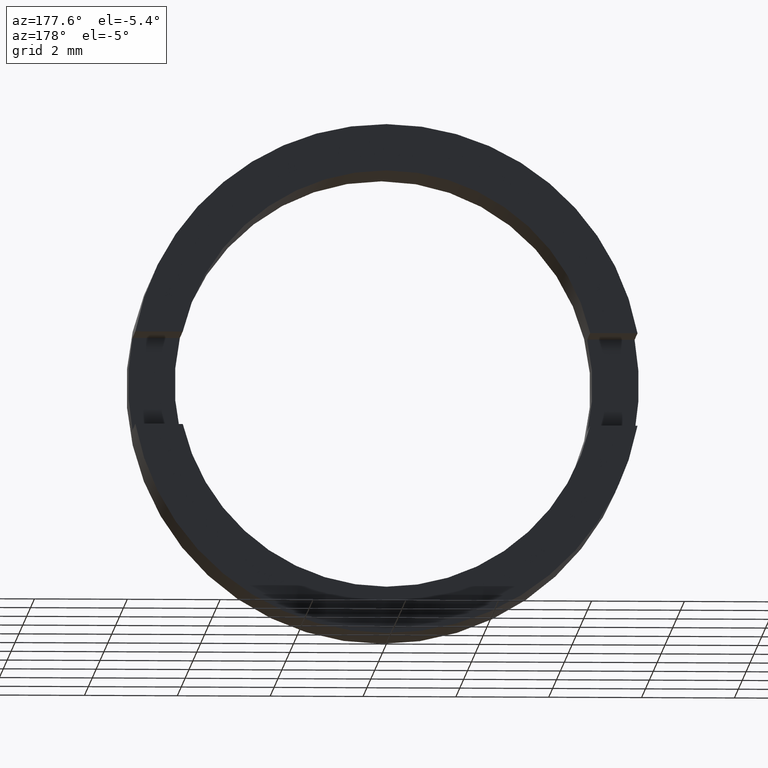
[diagram: clean part render]
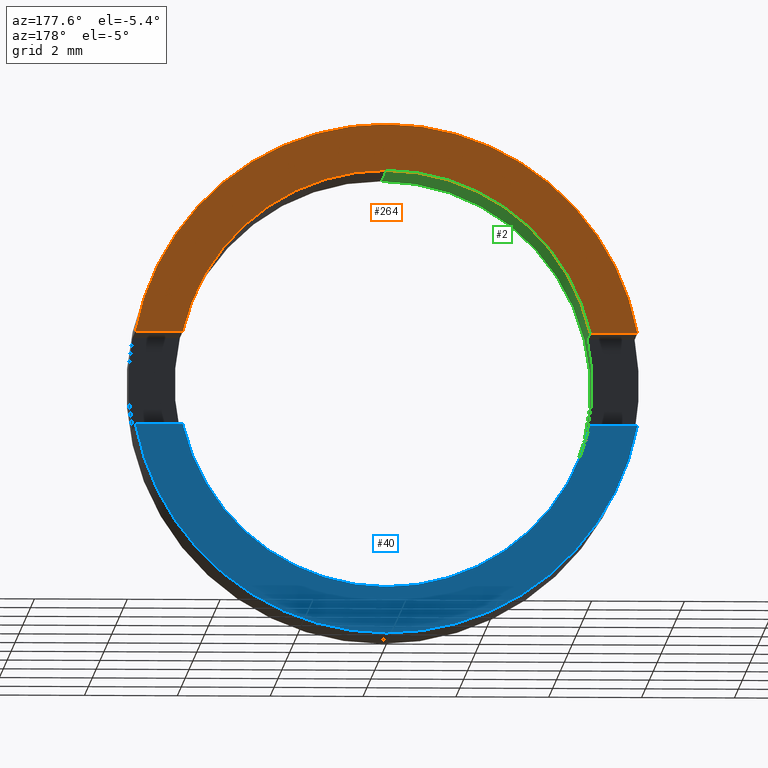
[diagram: same view with three faces highlighted in distinct colors, each labeled with its STEP entity id]
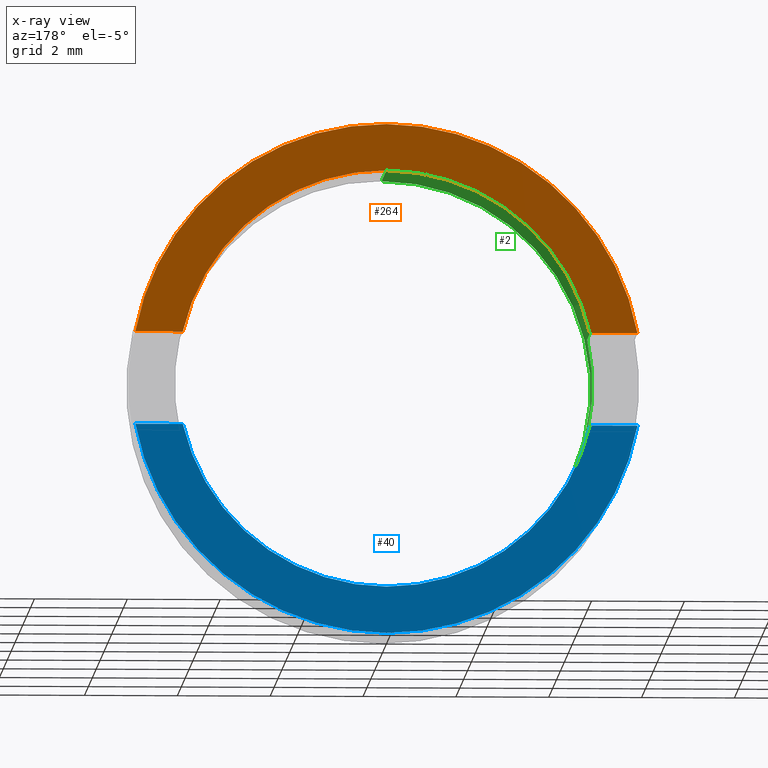
[diagram: x-ray of the same camera — body ghosted, the three highlighted faces saturated]
A machine part, auxiliary view with three faces highlighted in distinct colors.
The next image is the same camera in x-ray (body ghosted, the three faces saturated) — at least one of them is partly hidden behind the body in this view.
Their STEP definitions:

[orange] entity #264 — the highlighted planar face has unit normal (0, -1, 0).
#5 = DIRECTION ( 'NONE',  ( 0.0000000000000000000, 0.0000000000000000000, 1.000000000000000000 ) ) ;
#7 = CARTESIAN_POINT ( 'NONE',  ( 0.0000000000000000000, -1.964249787179434000, 0.0000000000000000000 ) ) ;
#9 = LINE ( 'NONE', #203, #224 ) ;
#28 = CARTESIAN_POINT ( 'NONE',  ( -26.85254027261461800, -1.964249787179430900, 1.000000000000000000 ) ) ;
#39 = EDGE_CURVE ( 'NONE', #310, #571, #260, .T. ) ;
#42 = AXIS2_PLACEMENT_3D ( 'NONE', #7, #491, #85 ) ;
#49 = VECTOR ( 'NONE', #481, 1000.000000000000000 ) ;
#66 = CARTESIAN_POINT ( 'NONE',  ( 0.0000000000000000000, -1.964249787179434000, 4.500000000000007100 ) ) ;
#69 = ORIENTED_EDGE ( 'NONE', *, *, #526, .T. ) ;
#71 = DIRECTION ( 'NONE',  ( 0.0000000000000000000, -0.0000000000000000000, -1.000000000000000000 ) ) ;
#72 = CIRCLE ( 'NONE', #381, 5.500000000000006200 ) ;
#85 = DIRECTION ( 'NONE',  ( 0.0000000000000000000, 0.0000000000000000000, 1.000000000000000000 ) ) ;
#143 = VERTEX_POINT ( 'NONE', #505 ) ;
#151 = FACE_OUTER_BOUND ( 'NONE', #295, .T. ) ;
#154 = DIRECTION ( 'NONE',  ( 1.000000000000000000, 0.0000000000000000000, 0.0000000000000000000 ) ) ;
#171 = CARTESIAN_POINT ( 'NONE',  ( -4.387482193696067500, -1.964249787179434000, 0.9999999999999995600 ) ) ;
#172 = LINE ( 'NONE', #28, #49 ) ;
#192 = AXIS2_PLACEMENT_3D ( 'NONE', #407, #547, #5 ) ;
#198 = DIRECTION ( 'NONE',  ( -0.0000000000000000000, 1.000000000000000000, -0.0000000000000000000 ) ) ;
#203 = CARTESIAN_POINT ( 'NONE',  ( -26.85254027261461800, -1.964249787179430900, 1.000000000000000000 ) ) ;
#208 = ORIENTED_EDGE ( 'NONE', *, *, #537, .F. ) ;
#220 = CARTESIAN_POINT ( 'NONE',  ( 4.387482193696067500, -1.964249787179434000, 0.9999999999999995600 ) ) ;
#224 = VECTOR ( 'NONE', #154, 1000.000000000000000 ) ;
#240 = CIRCLE ( 'NONE', #449, 5.500000000000006200 ) ;
#247 = DIRECTION ( 'NONE',  ( 0.0000000000000000000, -1.000000000000000000, 0.0000000000000000000 ) ) ;
#251 = DIRECTION ( 'NONE',  ( 0.0000000000000000000, 0.0000000000000000000, 1.000000000000000000 ) ) ;
#255 = VERTEX_POINT ( 'NONE', #518 ) ;
#256 = EDGE_CURVE ( 'NONE', #255, #143, #240, .T. ) ;
#260 = CIRCLE ( 'NONE', #192, 4.500000000000007100 ) ;
#264 = ADVANCED_FACE ( 'NONE', ( #151 ), #511, .F. ) ;
#289 = CARTESIAN_POINT ( 'NONE',  ( 4.500000000000007100, -1.964249787179430900, 0.0000000000000000000 ) ) ;
#295 = EDGE_LOOP ( 'NONE', ( #69, #360, #208, #564, #424, #472 ) ) ;
#310 = VERTEX_POINT ( 'NONE', #66 ) ;
#316 = AXIS2_PLACEMENT_3D ( 'NONE', #289, #247, #71 ) ;
#334 = CARTESIAN_POINT ( 'NONE',  ( -5.408326913195995900, -1.964249787179430900, 1.000000000000000000 ) ) ;
#347 = DIRECTION ( 'NONE',  ( -0.0000000000000000000, 1.000000000000000000, -0.0000000000000000000 ) ) ;
#356 = EDGE_CURVE ( 'NONE', #385, #515, #9, .T. ) ;
#360 = ORIENTED_EDGE ( 'NONE', *, *, #256, .T. ) ;
#372 = CARTESIAN_POINT ( 'NONE',  ( 0.0000000000000000000, -1.964249787179434000, 0.0000000000000000000 ) ) ;
#381 = AXIS2_PLACEMENT_3D ( 'NONE', #528, #347, #251 ) ;
#385 = VERTEX_POINT ( 'NONE', #334 ) ;
#407 = CARTESIAN_POINT ( 'NONE',  ( 0.0000000000000000000, -1.964249787179434000, 0.0000000000000000000 ) ) ;
#424 = ORIENTED_EDGE ( 'NONE', *, *, #559, .F. ) ;
#449 = AXIS2_PLACEMENT_3D ( 'NONE', #372, #198, #565 ) ;
#472 = ORIENTED_EDGE ( 'NONE', *, *, #356, .F. ) ;
#481 = DIRECTION ( 'NONE',  ( 1.000000000000000000, 0.0000000000000000000, 0.0000000000000000000 ) ) ;
#487 = CIRCLE ( 'NONE', #42, 4.500000000000007100 ) ;
#491 = DIRECTION ( 'NONE',  ( -0.0000000000000000000, 1.000000000000000000, -0.0000000000000000000 ) ) ;
#505 = CARTESIAN_POINT ( 'NONE',  ( 5.408326913195975500, -1.964249787179430900, 1.000000000000000000 ) ) ;
#511 = PLANE ( 'NONE',  #316 ) ;
#515 = VERTEX_POINT ( 'NONE', #171 ) ;
#518 = CARTESIAN_POINT ( 'NONE',  ( 0.0000000000000000000, -1.964249787179434000, 5.500000000000006200 ) ) ;
#526 = EDGE_CURVE ( 'NONE', #385, #255, #72, .T. ) ;
#528 = CARTESIAN_POINT ( 'NONE',  ( 0.0000000000000000000, -1.964249787179434000, 0.0000000000000000000 ) ) ;
#537 = EDGE_CURVE ( 'NONE', #571, #143, #172, .T. ) ;
#547 = DIRECTION ( 'NONE',  ( -0.0000000000000000000, 1.000000000000000000, -0.0000000000000000000 ) ) ;
#559 = EDGE_CURVE ( 'NONE', #515, #310, #487, .T. ) ;
#564 = ORIENTED_EDGE ( 'NONE', *, *, #39, .F. ) ;
#565 = DIRECTION ( 'NONE',  ( 0.0000000000000000000, 0.0000000000000000000, 1.000000000000000000 ) ) ;
#571 = VERTEX_POINT ( 'NONE', #220 ) ;

[blue] entity #40 — the highlighted planar face has unit normal (0, -1, 0).
#4 = DIRECTION ( 'NONE',  ( 0.0000000000000000000, -0.0000000000000000000, -1.000000000000000000 ) ) ;
#12 = AXIS2_PLACEMENT_3D ( 'NONE', #389, #346, #77 ) ;
#14 = CARTESIAN_POINT ( 'NONE',  ( 0.0000000000000000000, -1.964249787179434000, 0.0000000000000000000 ) ) ;
#18 = VERTEX_POINT ( 'NONE', #451 ) ;
#20 = CARTESIAN_POINT ( 'NONE',  ( 6.735557395310450900E-016, -1.964249787179434000, -5.500000000000006200 ) ) ;
#36 = ORIENTED_EDGE ( 'NONE', *, *, #196, .F. ) ;
#40 = ADVANCED_FACE ( 'NONE', ( #456 ), #48, .F. ) ;
#45 = CARTESIAN_POINT ( 'NONE',  ( 4.500000000000007100, -1.964249787179430900, 0.0000000000000000000 ) ) ;
#48 = PLANE ( 'NONE',  #204 ) ;
#51 = ORIENTED_EDGE ( 'NONE', *, *, #213, .T. ) ;
#77 = DIRECTION ( 'NONE',  ( 0.0000000000000000000, 0.0000000000000000000, 1.000000000000000000 ) ) ;
#94 = EDGE_CURVE ( 'NONE', #377, #96, #111, .T. ) ;
#95 = VECTOR ( 'NONE', #366, 1000.000000000000000 ) ;
#96 = VERTEX_POINT ( 'NONE', #321 ) ;
#106 = AXIS2_PLACEMENT_3D ( 'NONE', #14, #365, #415 ) ;
#111 = CIRCLE ( 'NONE', #106, 4.500000000000007100 ) ;
#114 = DIRECTION ( 'NONE',  ( -0.0000000000000000000, 1.000000000000000000, -0.0000000000000000000 ) ) ;
#120 = CIRCLE ( 'NONE', #138, 5.500000000000006200 ) ;
#122 = DIRECTION ( 'NONE',  ( -1.000000000000000000, -0.0000000000000000000, -0.0000000000000000000 ) ) ;
#123 = CARTESIAN_POINT ( 'NONE',  ( 5.510910596163098400E-016, -1.964249787179434000, -4.500000000000007100 ) ) ;
#129 = CARTESIAN_POINT ( 'NONE',  ( 0.0000000000000000000, -1.964249787179434000, 0.0000000000000000000 ) ) ;
#138 = AXIS2_PLACEMENT_3D ( 'NONE', #521, #114, #567 ) ;
#148 = ORIENTED_EDGE ( 'NONE', *, *, #94, .F. ) ;
#150 = CIRCLE ( 'NONE', #12, 4.500000000000007100 ) ;
#152 = ORIENTED_EDGE ( 'NONE', *, *, #427, .T. ) ;
#169 = DIRECTION ( 'NONE',  ( 0.0000000000000000000, 0.0000000000000000000, 1.000000000000000000 ) ) ;
#188 = CARTESIAN_POINT ( 'NONE',  ( -26.85254027261461800, -1.964249787179430900, -1.000000000000000000 ) ) ;
#190 = CIRCLE ( 'NONE', #380, 5.500000000000006200 ) ;
#196 = EDGE_CURVE ( 'NONE', #556, #570, #216, .T. ) ;
#204 = AXIS2_PLACEMENT_3D ( 'NONE', #45, #312, #4 ) ;
#212 = DIRECTION ( 'NONE',  ( -0.0000000000000000000, 1.000000000000000000, -0.0000000000000000000 ) ) ;
#213 = EDGE_CURVE ( 'NONE', #272, #18, #120, .T. ) ;
#216 = LINE ( 'NONE', #188, #95 ) ;
#227 = CARTESIAN_POINT ( 'NONE',  ( 5.408326913195975500, -1.964249787179430900, -1.000000000000000000 ) ) ;
#245 = EDGE_CURVE ( 'NONE', #96, #18, #419, .T. ) ;
#272 = VERTEX_POINT ( 'NONE', #20 ) ;
#279 = CARTESIAN_POINT ( 'NONE',  ( -26.85254027261461800, -1.964249787179430900, -1.000000000000000000 ) ) ;
#312 = DIRECTION ( 'NONE',  ( 0.0000000000000000000, -1.000000000000000000, 0.0000000000000000000 ) ) ;
#321 = CARTESIAN_POINT ( 'NONE',  ( -4.387482193696067500, -1.964249787179434000, -0.9999999999999995600 ) ) ;
#331 = ORIENTED_EDGE ( 'NONE', *, *, #484, .F. ) ;
#346 = DIRECTION ( 'NONE',  ( -0.0000000000000000000, 1.000000000000000000, -0.0000000000000000000 ) ) ;
#363 = EDGE_LOOP ( 'NONE', ( #152, #51, #508, #148, #331, #36 ) ) ;
#365 = DIRECTION ( 'NONE',  ( -0.0000000000000000000, 1.000000000000000000, -0.0000000000000000000 ) ) ;
#366 = DIRECTION ( 'NONE',  ( -1.000000000000000000, -0.0000000000000000000, -0.0000000000000000000 ) ) ;
#377 = VERTEX_POINT ( 'NONE', #123 ) ;
#380 = AXIS2_PLACEMENT_3D ( 'NONE', #129, #212, #169 ) ;
#389 = CARTESIAN_POINT ( 'NONE',  ( 0.0000000000000000000, -1.964249787179434000, 0.0000000000000000000 ) ) ;
#403 = VECTOR ( 'NONE', #122, 1000.000000000000000 ) ;
#415 = DIRECTION ( 'NONE',  ( 0.0000000000000000000, 0.0000000000000000000, 1.000000000000000000 ) ) ;
#419 = LINE ( 'NONE', #279, #403 ) ;
#427 = EDGE_CURVE ( 'NONE', #556, #272, #190, .T. ) ;
#451 = CARTESIAN_POINT ( 'NONE',  ( -5.408326913195995900, -1.964249787179430900, -1.000000000000000000 ) ) ;
#453 = CARTESIAN_POINT ( 'NONE',  ( 4.387482193696067500, -1.964249787179434000, -0.9999999999999995600 ) ) ;
#456 = FACE_OUTER_BOUND ( 'NONE', #363, .T. ) ;
#484 = EDGE_CURVE ( 'NONE', #570, #377, #150, .T. ) ;
#508 = ORIENTED_EDGE ( 'NONE', *, *, #245, .F. ) ;
#521 = CARTESIAN_POINT ( 'NONE',  ( 0.0000000000000000000, -1.964249787179434000, 0.0000000000000000000 ) ) ;
#556 = VERTEX_POINT ( 'NONE', #227 ) ;
#567 = DIRECTION ( 'NONE',  ( 0.0000000000000000000, 0.0000000000000000000, 1.000000000000000000 ) ) ;
#570 = VERTEX_POINT ( 'NONE', #453 ) ;

[green] entity #2 — the highlighted cylindrical surface (partial cylindrical patch) has radius 4.5 mm, axis along (-0, 1, -0).
#2 = ADVANCED_FACE ( 'NONE', ( #105 ), #249, .F. ) ;
#3 = ORIENTED_EDGE ( 'NONE', *, *, #559, .T. ) ;
#7 = CARTESIAN_POINT ( 'NONE',  ( 0.0000000000000000000, -1.964249787179434000, 0.0000000000000000000 ) ) ;
#14 = CARTESIAN_POINT ( 'NONE',  ( 0.0000000000000000000, -1.964249787179434000, 0.0000000000000000000 ) ) ;
#42 = AXIS2_PLACEMENT_3D ( 'NONE', #7, #491, #85 ) ;
#63 = CARTESIAN_POINT ( 'NONE',  ( -4.387482193696067500, -3.464249787179428400, 0.9999999999999995600 ) ) ;
#65 = EDGE_CURVE ( 'NONE', #96, #290, #488, .T. ) ;
#66 = CARTESIAN_POINT ( 'NONE',  ( 0.0000000000000000000, -1.964249787179434000, 4.500000000000007100 ) ) ;
#74 = ORIENTED_EDGE ( 'NONE', *, *, #153, .F. ) ;
#81 = DIRECTION ( 'NONE',  ( -0.0000000000000000000, 1.000000000000000000, -0.0000000000000000000 ) ) ;
#84 = AXIS2_PLACEMENT_3D ( 'NONE', #99, #273, #277 ) ;
#85 = DIRECTION ( 'NONE',  ( 0.0000000000000000000, 0.0000000000000000000, 1.000000000000000000 ) ) ;
#94 = EDGE_CURVE ( 'NONE', #377, #96, #111, .T. ) ;
#96 = VERTEX_POINT ( 'NONE', #321 ) ;
#99 = CARTESIAN_POINT ( 'NONE',  ( 0.0000000000000000000, 56.26084262701361600, 0.0000000000000000000 ) ) ;
#105 = FACE_OUTER_BOUND ( 'NONE', #546, .T. ) ;
#106 = AXIS2_PLACEMENT_3D ( 'NONE', #14, #365, #415 ) ;
#107 = CARTESIAN_POINT ( 'NONE',  ( 0.0000000000000000000, -3.464249787179428400, 0.0000000000000000000 ) ) ;
#111 = CIRCLE ( 'NONE', #106, 4.500000000000007100 ) ;
#123 = CARTESIAN_POINT ( 'NONE',  ( 5.510910596163098400E-016, -1.964249787179434000, -4.500000000000007100 ) ) ;
#124 = CARTESIAN_POINT ( 'NONE',  ( -4.387482193696068400, 56.26084262701361600, 1.000000000000000000 ) ) ;
#127 = CIRCLE ( 'NONE', #250, 4.500000000000007100 ) ;
#135 = VERTEX_POINT ( 'NONE', #63 ) ;
#153 = EDGE_CURVE ( 'NONE', #135, #290, #127, .T. ) ;
#155 = DIRECTION ( 'NONE',  ( -0.0000000000000000000, 1.000000000000000000, -0.0000000000000000000 ) ) ;
#161 = CARTESIAN_POINT ( 'NONE',  ( 0.0000000000000000000, 56.26084262701361600, 4.500000000000007100 ) ) ;
#162 = CARTESIAN_POINT ( 'NONE',  ( -4.387482193696067500, -3.464249787179428400, -0.9999999999999995600 ) ) ;
#171 = CARTESIAN_POINT ( 'NONE',  ( -4.387482193696067500, -1.964249787179434000, 0.9999999999999995600 ) ) ;
#187 = DIRECTION ( 'NONE',  ( 0.0000000000000000000, 0.0000000000000000000, 1.000000000000000000 ) ) ;
#205 = DIRECTION ( 'NONE',  ( 0.0000000000000000000, 0.0000000000000000000, 1.000000000000000000 ) ) ;
#210 = ORIENTED_EDGE ( 'NONE', *, *, #352, .F. ) ;
#211 = CARTESIAN_POINT ( 'NONE',  ( 5.510910596163098400E-016, 56.26084262701361600, -4.500000000000007100 ) ) ;
#249 = CYLINDRICAL_SURFACE ( 'NONE', #84, 4.500000000000007100 ) ;
#250 = AXIS2_PLACEMENT_3D ( 'NONE', #107, #285, #187 ) ;
#257 = CARTESIAN_POINT ( 'NONE',  ( 0.0000000000000000000, -4.464249787179428900, 4.500000000000007100 ) ) ;
#263 = AXIS2_PLACEMENT_3D ( 'NONE', #333, #425, #205 ) ;
#273 = DIRECTION ( 'NONE',  ( -0.0000000000000000000, 1.000000000000000000, -0.0000000000000000000 ) ) ;
#275 = LINE ( 'NONE', #211, #375 ) ;
#277 = DIRECTION ( 'NONE',  ( 0.0000000000000000000, 0.0000000000000000000, 1.000000000000000000 ) ) ;
#285 = DIRECTION ( 'NONE',  ( -0.0000000000000000000, -1.000000000000000000, -0.0000000000000000000 ) ) ;
#290 = VERTEX_POINT ( 'NONE', #162 ) ;
#310 = VERTEX_POINT ( 'NONE', #66 ) ;
#320 = VECTOR ( 'NONE', #155, 1000.000000000000000 ) ;
#321 = CARTESIAN_POINT ( 'NONE',  ( -4.387482193696067500, -1.964249787179434000, -0.9999999999999995600 ) ) ;
#333 = CARTESIAN_POINT ( 'NONE',  ( 0.0000000000000000000, -4.464249787179428900, 0.0000000000000000000 ) ) ;
#342 = DIRECTION ( 'NONE',  ( -0.0000000000000000000, 1.000000000000000000, -0.0000000000000000000 ) ) ;
#352 = EDGE_CURVE ( 'NONE', #418, #435, #474, .T. ) ;
#357 = DIRECTION ( 'NONE',  ( 0.0000000000000000000, -1.000000000000000000, 0.0000000000000000000 ) ) ;
#365 = DIRECTION ( 'NONE',  ( -0.0000000000000000000, 1.000000000000000000, -0.0000000000000000000 ) ) ;
#370 = EDGE_CURVE ( 'NONE', #435, #310, #442, .T. ) ;
#375 = VECTOR ( 'NONE', #81, 1000.000000000000000 ) ;
#377 = VERTEX_POINT ( 'NONE', #123 ) ;
#404 = EDGE_CURVE ( 'NONE', #135, #515, #429, .T. ) ;
#415 = DIRECTION ( 'NONE',  ( 0.0000000000000000000, 0.0000000000000000000, 1.000000000000000000 ) ) ;
#418 = VERTEX_POINT ( 'NONE', #432 ) ;
#422 = EDGE_CURVE ( 'NONE', #418, #377, #275, .T. ) ;
#425 = DIRECTION ( 'NONE',  ( -0.0000000000000000000, 1.000000000000000000, -0.0000000000000000000 ) ) ;
#429 = LINE ( 'NONE', #124, #539 ) ;
#432 = CARTESIAN_POINT ( 'NONE',  ( 5.510910596163098400E-016, -4.464249787179428900, -4.500000000000007100 ) ) ;
#435 = VERTEX_POINT ( 'NONE', #257 ) ;
#442 = LINE ( 'NONE', #161, #320 ) ;
#458 = ORIENTED_EDGE ( 'NONE', *, *, #404, .T. ) ;
#474 = CIRCLE ( 'NONE', #263, 4.500000000000007100 ) ;
#487 = CIRCLE ( 'NONE', #42, 4.500000000000007100 ) ;
#488 = LINE ( 'NONE', #497, #578 ) ;
#489 = ORIENTED_EDGE ( 'NONE', *, *, #65, .T. ) ;
#491 = DIRECTION ( 'NONE',  ( -0.0000000000000000000, 1.000000000000000000, -0.0000000000000000000 ) ) ;
#495 = ORIENTED_EDGE ( 'NONE', *, *, #370, .F. ) ;
#497 = CARTESIAN_POINT ( 'NONE',  ( -4.387482193696068400, 56.26084262701361600, -1.000000000000000000 ) ) ;
#515 = VERTEX_POINT ( 'NONE', #171 ) ;
#533 = ORIENTED_EDGE ( 'NONE', *, *, #422, .T. ) ;
#539 = VECTOR ( 'NONE', #342, 1000.000000000000000 ) ;
#540 = ORIENTED_EDGE ( 'NONE', *, *, #94, .T. ) ;
#546 = EDGE_LOOP ( 'NONE', ( #210, #533, #540, #489, #74, #458, #3, #495 ) ) ;
#559 = EDGE_CURVE ( 'NONE', #515, #310, #487, .T. ) ;
#578 = VECTOR ( 'NONE', #357, 1000.000000000000000 ) ;